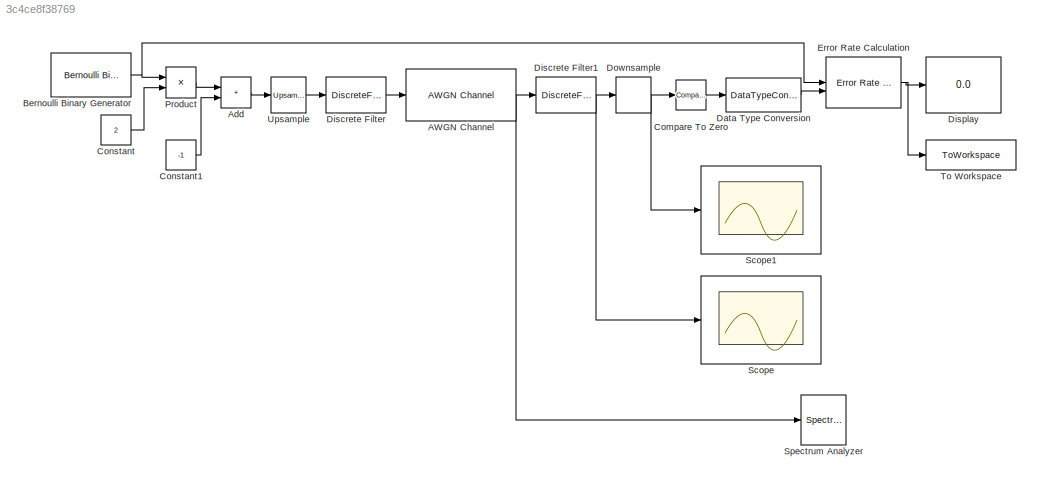
MODEL slx_3c4ce8f38769
KIND model
CONFIG AbsTol = auto
CONFIG EnableMultiTasking = off
CONFIG FixedStep = auto
CONFIG MaxStep = auto
CONFIG MinStep = auto
CONFIG RelTol = 1e-3
CONFIG SampleTimeConstraint = Unconstrained
CONFIG SolverName = FixedStepDiscrete
CONFIG StartTime = 0.0
CONFIG StopTime = inf
WORKSPACE source: mxarray member
WORKSPACE simin = 10
BLOCK [Reference] AWGN Channel  REF=commchan3/AWGN
Channel
  SourceBlock = commchan3/AWGN\nChannel
  SourceType = AWGN Channel
BLOCK [Sum] Add
  IconShape = rectangular
BLOCK [Reference] Bernoulli Binary Generator  REF=commrandsrc3/Bernoulli Binary
Generator
  SourceBlock = commrandsrc3/Bernoulli Binary\nGenerator
  SourceType = Bernoulli Binary Generator
BLOCK [Reference] Compare To Zero  REF=simulink/Logic and Bit
Operations/Compare
To Zero
  SourceBlock = simulink/Logic and Bit\nOperations/Compare\nTo Zero
  SourceType = Compare To Zero
BLOCK [Constant] Constant
  Value = 2
BLOCK [Constant] Constant1
  Value = -1
BLOCK [DataTypeConversion] Data Type Conversion
  RndMeth = Floor
  SaturateOnIntegerOverflow = off
BLOCK [DiscreteFilter] Discrete Filter
  Denominator = [1]
  InputPortMap = u0
  Numerator = [1 1 1 1 -1 -1 -1 -1 ]
BLOCK [DiscreteFilter] Discrete Filter1
  Denominator = [1]
  InputPortMap = u0
  Numerator = -[1 1 1 1 -1 -1 -1 -1 ]
BLOCK [Display] Display
  Decimation = 1
BLOCK [DownSample] Downsample
  AllowArbitraryFixedInput = on
  N = 8
  RateOptions = Allow multirate processing
  phase = 7
BLOCK [Reference] Error Rate Calculation  REF=commsink2/Error Rate
Calculation
  SourceBlock = commsink2/Error Rate\nCalculation
  SourceType = Error Rate Calculation
BLOCK [Product] Product
BLOCK [Scope] Scope
  ActiveDisplayYMaximum = 13.63374
  ActiveDisplayYMinimum = -13.59784
  Commented = on
  Floating = off
  GraphicalSettings = {"GraphicalSettings":{"LegacySettings":true,"Style":{"Style":{"AxesColor":"[0 0 0]","ChannelNames":[""],"ColorOrder":"[1 1 0.0666666666666667;0.0745098039215686 0.623529411764706 1;1 0.411764705882353 0.16078431372549;0.392156862745098 0.831372549019608 0.0745098039215686;0.717647058823529 0.274509803921569 1;0.0588235294117647 1 1;1 0.0745098039215686 0.650980392156863]","CurrentConfiguration":"e...<+381ch>
  MultipleDisplayCache = [{"MaxYLimMag":13.63374,"MaxYLimReal":13.63374,"MinYLimMag":0,"MinYLimReal":-13.59784,"PlotAsMagnitudePhase":false,"ShowGrid":true,"ShowLegend":false,"Title":"%<SignalLabel>","YLabel":""}]
  NumInputPorts = 1
  WasSavedAsWebScope = on
BLOCK [Scope] Scope1
  ActiveDisplayYMaximum = 13.59824
  ActiveDisplayYMinimum = -13.27836
  Commented = on
  DataLoggingVariableName = ScopeData1
  Floating = off
  GraphicalSettings = {"GraphicalSettings":{"LegacySettings":true,"Style":{"Style":{"AxesColor":"[0 0 0]","ChannelNames":[""],"ColorOrder":"[1 1 0.0666666666666667;0.0745098039215686 0.623529411764706 1;1 0.411764705882353 0.16078431372549;0.392156862745098 0.831372549019608 0.0745098039215686;0.717647058823529 0.274509803921569 1;0.0588235294117647 1 1;1 0.0745098039215686 0.650980392156863]","CurrentConfiguration":"e...<+382ch>
  MultipleDisplayCache = [{"MaxYLimMag":13.59824,"MaxYLimReal":13.59824,"MinYLimMag":0,"MinYLimReal":-13.27836,"PlotAsMagnitudePhase":false,"ShowGrid":true,"ShowLegend":false,"Title":"%<SignalLabel>","YLabel":""}]
  NumInputPorts = 1
  WasSavedAsWebScope = on
BLOCK [SpectrumAnalyzer] Spectrum Analyzer
  Commented = on
  GraphicalSettings = {"GraphicalSettings":{"Style":{"BackgroundColor":[0.12941176470588237,0.12941176470588237,0.12941176470588237],"AxesColor":[0.07058823529411765,0.07058823529411765,0.07058823529411765],"LabelsColor":[0.8509803921568627,0.8509803921568627,0.8509803921568627],"PreserveColors":false,"Visible":[true],"LineStyle":["-"],"LineColor":[[1,1,0.06666666666666667]],"LineWidth":[1.5],"Marker":["none"],"FontSiz...<+929ch>
  ScopeFrameLocation = window
  Span = 8
  StartFrequency = -4
  StopFrequency = 4
  WasSavedAsWebScope = on
  WindowPosition = [368.000000,182.000000,800.000000,500.000000,]
  YLimits = [-50.93328592,6.03057014]
BLOCK [ToWorkspace] To Workspace
  FixptAsFi = on
  MaxDataPoints = 1
  SampleTime = -1
  Save2DSignal = 2-D array (concatenate along first dimension)
  VariableName = errors
BLOCK [Reference] Upsample  REF=dspsigops/Upsample
  SourceBlock = dspsigops/Upsample
  SourceType = Upsample
  UserDataPersistent = on
NET AWGN Channel:1 -> Discrete Filter1:1, Spectrum Analyzer:1
LINE Add:1 -> Upsample:1
NET Bernoulli Binary Generator:1 -> Error Rate Calculation:1, Product:1
LINE Compare To Zero:1 -> Data Type Conversion:1
LINE Constant1:1 -> Add:2
LINE Constant:1 -> Product:2
LINE Data Type Conversion:1 -> Error Rate Calculation:2
NET Discrete Filter1:1 -> Downsample:1, Scope:1
LINE Discrete Filter:1 -> AWGN Channel:1
NET Downsample:1 -> Compare To Zero:1, Scope1:1
NET Error Rate Calculation:1 -> Display:1, To Workspace:1
LINE Product:1 -> Add:1
LINE Upsample:1 -> Discrete Filter:1
note: NET lines group one-source signal fan-out (src -> all destinations, sorted); 1:1 wires keep LINE
